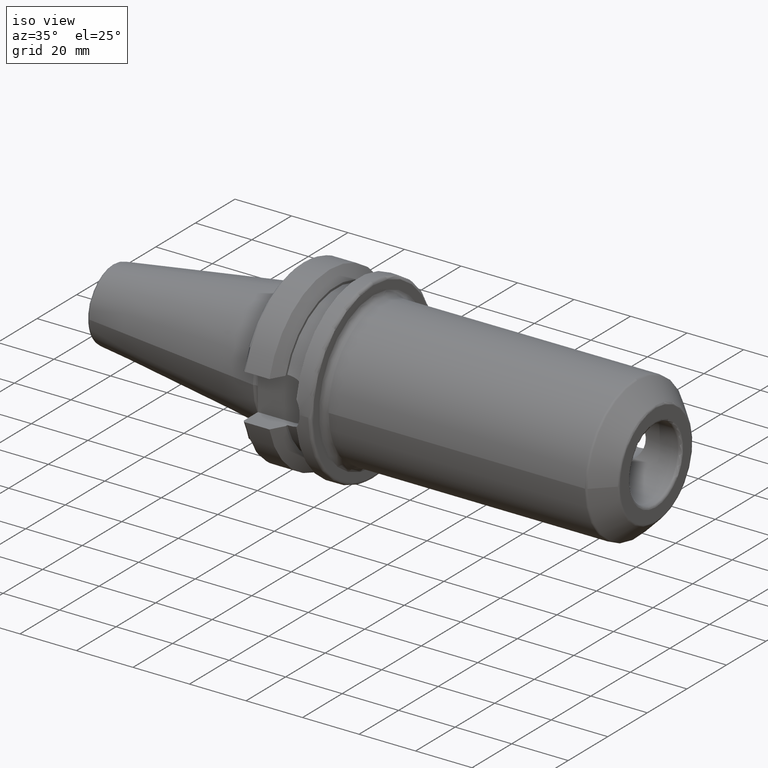
[diagram: clean part render]
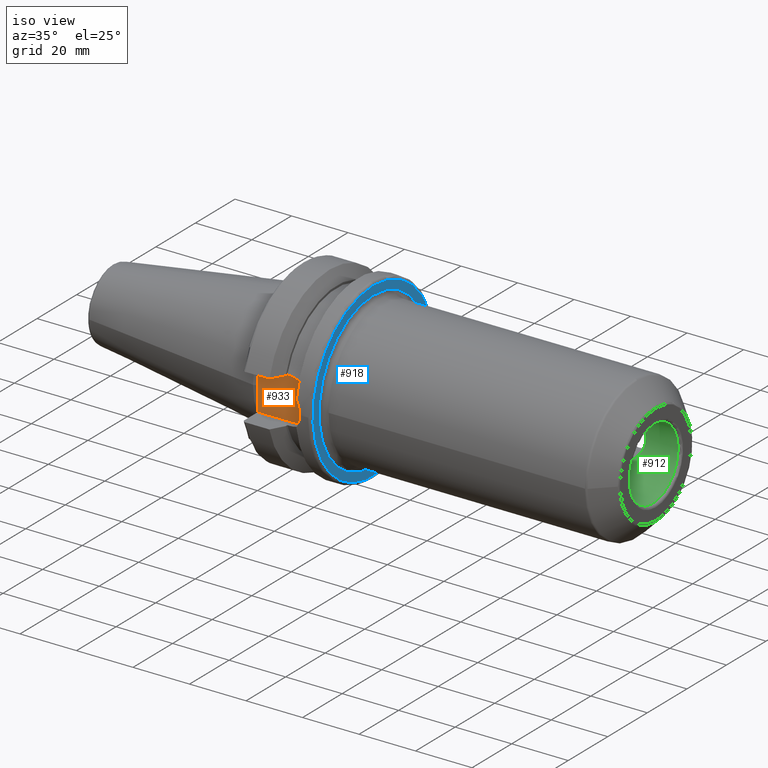
[diagram: same view with three faces highlighted in distinct colors, each labeled with its STEP entity id]
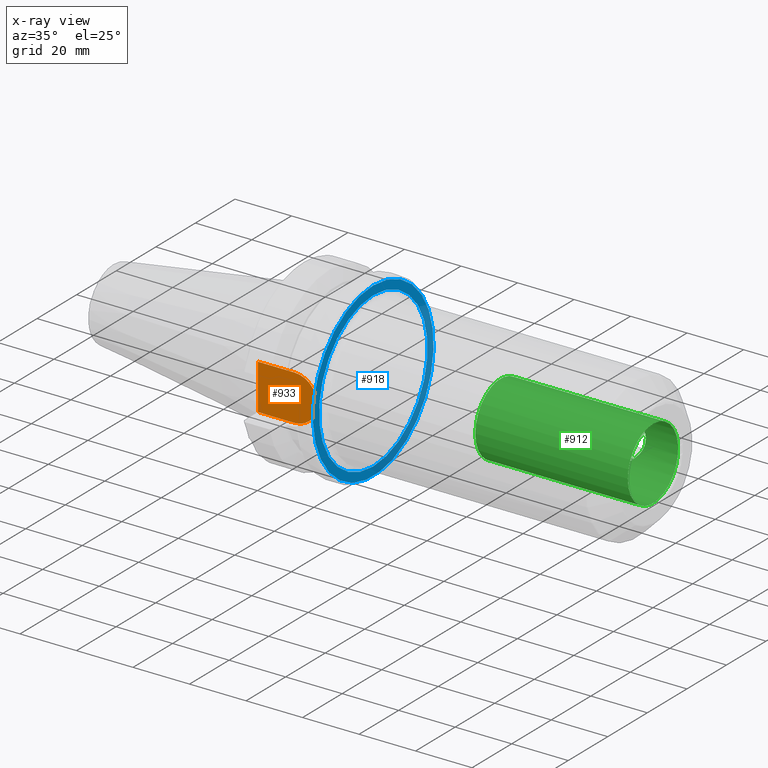
[diagram: x-ray of the same camera — body ghosted, the three highlighted faces saturated]
A machine part, iso view with three faces highlighted in distinct colors.
The next image is the same camera in x-ray (body ghosted, the three faces saturated) — at least one of them is partly hidden behind the body in this view.
Their STEP definitions:

[orange] entity #933 — the highlighted planar face has unit normal (0, 1, 0).
#74=LINE('',#2025,#123);
#76=LINE('',#2030,#125);
#80=LINE('',#2052,#129);
#123=VECTOR('',#1226,10.);
#125=VECTOR('',#1230,10.);
#129=VECTOR('',#1236,10.);
#186=PLANE('',#1038);
#220=FACE_OUTER_BOUND('',#284,.T.);
#284=EDGE_LOOP('',(#737,#738,#739,#740));
#347=CIRCLE('',#1035,8.05);
#425=VERTEX_POINT('',#1996);
#426=VERTEX_POINT('',#1998);
#432=VERTEX_POINT('',#2023);
#434=VERTEX_POINT('',#2029);
#533=EDGE_CURVE('',#425,#426,#347,.T.);
#541=EDGE_CURVE('',#432,#425,#74,.T.);
#543=EDGE_CURVE('',#426,#434,#76,.T.);
#549=EDGE_CURVE('',#434,#432,#80,.T.);
#737=ORIENTED_EDGE('',*,*,#543,.F.);
#738=ORIENTED_EDGE('',*,*,#533,.F.);
#739=ORIENTED_EDGE('',*,*,#541,.F.);
#740=ORIENTED_EDGE('',*,*,#549,.F.);
#933=ADVANCED_FACE('',(#220),#186,.F.);
#1035=AXIS2_PLACEMENT_3D('',#1999,#1217,#1218);
#1038=AXIS2_PLACEMENT_3D('',#2051,#1234,#1235);
#1217=DIRECTION('center_axis',(0.,1.,0.));
#1218=DIRECTION('ref_axis',(0.,0.,1.));
#1226=DIRECTION('',(1.,0.,8.57315076930623E-17));
#1230=DIRECTION('',(-1.,0.,-8.57315076930623E-17));
#1234=DIRECTION('center_axis',(0.,1.,0.));
#1235=DIRECTION('ref_axis',(0.,0.,1.));
#1236=DIRECTION('',(0.,0.,1.));
#1996=CARTESIAN_POINT('',(14.95,-22.6,8.05));
#1998=CARTESIAN_POINT('',(14.95,-22.6,-8.05));
#1999=CARTESIAN_POINT('Origin',(14.95,-22.6,0.));
#2023=CARTESIAN_POINT('',(1.99999999999999,-22.6,8.05));
#2025=CARTESIAN_POINT('',(1.99999999999999,-22.6,8.05));
#2029=CARTESIAN_POINT('',(1.99999999999999,-22.6,-8.05));
#2030=CARTESIAN_POINT('',(14.95,-22.6,-8.05));
#2051=CARTESIAN_POINT('Origin',(12.5,-22.6,0.));
#2052=CARTESIAN_POINT('',(1.99999999999999,-22.6,0.));

[blue] entity #918 — the highlighted planar face has unit normal (1, 0, 0).
#174=FACE_BOUND('',#267,.T.);
#181=PLANE('',#1015);
#205=FACE_OUTER_BOUND('',#266,.T.);
#266=EDGE_LOOP('',(#664));
#267=EDGE_LOOP('',(#665));
#337=CIRCLE('',#1014,27.4);
#338=CIRCLE('',#1016,30.5);
#404=VERTEX_POINT('',#1581);
#405=VERTEX_POINT('',#1585);
#503=EDGE_CURVE('',#404,#404,#337,.T.);
#504=EDGE_CURVE('',#405,#405,#338,.T.);
#664=ORIENTED_EDGE('',*,*,#504,.T.);
#665=ORIENTED_EDGE('',*,*,#503,.F.);
#918=ADVANCED_FACE('',(#205,#174),#181,.T.);
#1014=AXIS2_PLACEMENT_3D('',#1583,#1163,#1164);
#1015=AXIS2_PLACEMENT_3D('',#1584,#1165,#1166);
#1016=AXIS2_PLACEMENT_3D('',#1586,#1167,#1168);
#1163=DIRECTION('center_axis',(1.,0.,0.));
#1164=DIRECTION('ref_axis',(0.,-1.,-1.22464679914735E-16));
#1165=DIRECTION('center_axis',(1.,0.,0.));
#1166=DIRECTION('ref_axis',(0.,0.,-1.));
#1167=DIRECTION('center_axis',(1.,0.,0.));
#1168=DIRECTION('ref_axis',(0.,0.,-1.));
#1581=CARTESIAN_POINT('',(27.,-3.35553222966375E-15,-27.4));
#1583=CARTESIAN_POINT('Origin',(27.,0.,0.));
#1584=CARTESIAN_POINT('Origin',(27.,0.,0.));
#1585=CARTESIAN_POINT('',(27.,-3.73517273739943E-15,30.5));
#1586=CARTESIAN_POINT('Origin',(27.,0.,0.));

[green] entity #912 — the highlighted cylindrical surface (bore or boss wall) has radius 12.7 mm, axis along (1, 0, 0).
#31=B_SPLINE_CURVE_WITH_KNOTS('',3,(#1415,#1416,#1417,#1418,#1419,#1420,
#1421,#1422,#1423,#1424),.UNSPECIFIED.,.F.,.F.,(4,2,2,2,4),(0.,0.342831187342052,
0.685662374684103,1.02424067190905,1.36281896913399),.UNSPECIFIED.);
#32=B_SPLINE_CURVE_WITH_KNOTS('',3,(#1425,#1426,#1427,#1428,#1429,#1430,
#1431,#1432,#1433,#1434,#1435,#1436,#1437,#1438,#1439,#1440,#1441,#1442,
#1443,#1444,#1445,#1446,#1447,#1448,#1449,#1450),.UNSPECIFIED.,.F.,.F.,
(4,2,2,2,2,2,2,2,2,2,2,2,4),(1.36281896913399,1.70139726635893,2.03997556358388,
2.38280675092593,2.72563793826798,3.06846912561003,3.41130031295208,3.74987861017703,
4.08845690740197,4.42703520462691,4.76561350185186,5.10844468919391,5.45127587653596),
 .UNSPECIFIED.);
#33=B_SPLINE_CURVE_WITH_KNOTS('',3,(#1453,#1454,#1455,#1456,#1457,#1458,
#1459,#1460,#1461,#1462),.UNSPECIFIED.,.F.,.F.,(4,2,2,2,4),(0.,0.342831187342052,
0.685662374684103,1.02424067190905,1.36281896913399),.UNSPECIFIED.);
#34=B_SPLINE_CURVE_WITH_KNOTS('',3,(#1463,#1464,#1465,#1466,#1467,#1468,
#1469,#1470,#1471,#1472,#1473,#1474,#1475,#1476,#1477,#1478,#1479,#1480,
#1481,#1482,#1483,#1484,#1485,#1486,#1487,#1488),.UNSPECIFIED.,.F.,.F.,
(4,2,2,2,2,2,2,2,2,2,2,2,4),(1.36281896913399,1.70139726635893,2.03997556358388,
2.38280675092593,2.72563793826798,3.06846912561003,3.41130031295208,3.74987861017703,
4.08845690740197,4.42703520462691,4.76561350185186,5.10844468919391,5.45127587653596),
 .UNSPECIFIED.);
#54=LINE('',#1411,#103);
#103=VECTOR('',#1126,12.7);
#152=CYLINDRICAL_SURFACE('',#996,12.7);
#170=FACE_BOUND('',#257,.T.);
#171=FACE_BOUND('',#258,.T.);
#199=FACE_OUTER_BOUND('',#256,.T.);
#256=EDGE_LOOP('',(#625,#626,#627,#628,#629));
#257=EDGE_LOOP('',(#630,#631));
#258=EDGE_LOOP('',(#632,#633));
#320=CIRCLE('',#990,12.7);
#321=CIRCLE('',#991,12.7);
#325=CIRCLE('',#997,12.7);
#385=VERTEX_POINT('',#1399);
#386=VERTEX_POINT('',#1400);
#389=VERTEX_POINT('',#1410);
#390=VERTEX_POINT('',#1413);
#391=VERTEX_POINT('',#1414);
#392=VERTEX_POINT('',#1451);
#393=VERTEX_POINT('',#1452);
#477=EDGE_CURVE('',#385,#386,#320,.T.);
#478=EDGE_CURVE('',#386,#385,#321,.T.);
#482=EDGE_CURVE('',#386,#389,#54,.T.);
#483=EDGE_CURVE('',#389,#389,#325,.T.);
#484=EDGE_CURVE('',#390,#391,#31,.T.);
#485=EDGE_CURVE('',#391,#390,#32,.T.);
#486=EDGE_CURVE('',#392,#393,#33,.T.);
#487=EDGE_CURVE('',#393,#392,#34,.T.);
#625=ORIENTED_EDGE('',*,*,#477,.F.);
#626=ORIENTED_EDGE('',*,*,#478,.F.);
#627=ORIENTED_EDGE('',*,*,#482,.T.);
#628=ORIENTED_EDGE('',*,*,#483,.F.);
#629=ORIENTED_EDGE('',*,*,#482,.F.);
#630=ORIENTED_EDGE('',*,*,#484,.T.);
#631=ORIENTED_EDGE('',*,*,#485,.T.);
#632=ORIENTED_EDGE('',*,*,#486,.T.);
#633=ORIENTED_EDGE('',*,*,#487,.T.);
#912=ADVANCED_FACE('',(#199,#170,#171),#152,.F.);
#990=AXIS2_PLACEMENT_3D('',#1401,#1112,#1113);
#991=AXIS2_PLACEMENT_3D('',#1402,#1114,#1115);
#996=AXIS2_PLACEMENT_3D('',#1409,#1124,#1125);
#997=AXIS2_PLACEMENT_3D('',#1412,#1127,#1128);
#1112=DIRECTION('center_axis',(-1.,0.,0.));
#1113=DIRECTION('ref_axis',(0.,-1.,1.83697019872103E-16));
#1114=DIRECTION('center_axis',(-1.,0.,0.));
#1115=DIRECTION('ref_axis',(0.,-1.,1.83697019872103E-16));
#1124=DIRECTION('center_axis',(1.,0.,0.));
#1125=DIRECTION('ref_axis',(0.,1.,0.));
#1126=DIRECTION('',(-1.,0.,0.));
#1127=DIRECTION('center_axis',(1.,0.,0.));
#1128=DIRECTION('ref_axis',(0.,0.,-1.));
#1399=CARTESIAN_POINT('',(126.,-1.55530143491714E-15,12.7));
#1400=CARTESIAN_POINT('',(126.,-12.7,-1.55530143491714E-15));
#1401=CARTESIAN_POINT('Origin',(126.,0.,0.));
#1402=CARTESIAN_POINT('Origin',(126.,0.,0.));
#1409=CARTESIAN_POINT('Origin',(99.5,0.,0.));
#1410=CARTESIAN_POINT('',(72.,-12.7,-1.55530143491714E-15));
#1411=CARTESIAN_POINT('',(99.5,-12.7,-1.55530143491714E-15));
#1412=CARTESIAN_POINT('Origin',(72.,0.,0.));
#1413=CARTESIAN_POINT('',(105.9,9.28817258883579,8.6614));
#1414=CARTESIAN_POINT('',(114.5614,12.7,2.4753723005834E-17));
#1415=CARTESIAN_POINT('Ctrl Pts',(105.9,9.28817258883579,8.6614));
#1416=CARTESIAN_POINT('Ctrl Pts',(107.042770624473,9.28817258883579,8.6614));
#1417=CARTESIAN_POINT('Ctrl Pts',(108.213192579857,9.52028980979608,8.42510703939285));
#1418=CARTESIAN_POINT('Ctrl Pts',(110.324818648047,10.2403122930747,7.53354592798));
#1419=CARTESIAN_POINT('Ctrl Pts',(111.271511011252,10.7111190531903,6.87755833788624));
#1420=CARTESIAN_POINT('Ctrl Pts',(112.768216927262,11.5350374541816,5.38085242187607));
#1421=CARTESIAN_POINT('Ctrl Pts',(113.430286935993,11.9523850753063,4.43227008771077));
#1422=CARTESIAN_POINT('Ctrl Pts',(114.327767414902,12.5372065673924,2.30715875855383));
#1423=CARTESIAN_POINT('Ctrl Pts',(114.5614,12.7,1.12859432408315));
#1424=CARTESIAN_POINT('Ctrl Pts',(114.5614,12.7,1.38777878078145E-15));
#1425=CARTESIAN_POINT('Ctrl Pts',(114.5614,12.7,1.11022302462516E-15));
#1426=CARTESIAN_POINT('Ctrl Pts',(114.5614,12.7,-1.12859432408314));
#1427=CARTESIAN_POINT('Ctrl Pts',(114.327767414902,12.5372065673924,-2.30715875855383));
#1428=CARTESIAN_POINT('Ctrl Pts',(113.430286935993,11.9523850753063,-4.43227008771077));
#1429=CARTESIAN_POINT('Ctrl Pts',(112.768216927262,11.5350374541816,-5.38085242187607));
#1430=CARTESIAN_POINT('Ctrl Pts',(111.271511011252,10.7111190531903,-6.87755833788624));
#1431=CARTESIAN_POINT('Ctrl Pts',(110.324818648047,10.2403122930747,-7.53354592798));
#1432=CARTESIAN_POINT('Ctrl Pts',(108.213192579857,9.52028980979607,-8.42510703939285));
#1433=CARTESIAN_POINT('Ctrl Pts',(107.042770624473,9.28817258883579,-8.6614));
#1434=CARTESIAN_POINT('Ctrl Pts',(104.757229375526,9.28817258883579,-8.6614));
#1435=CARTESIAN_POINT('Ctrl Pts',(103.586807420143,9.52028980979608,-8.42510703939285));
#1436=CARTESIAN_POINT('Ctrl Pts',(101.475181351953,10.2403122930747,-7.53354592798));
#1437=CARTESIAN_POINT('Ctrl Pts',(100.528488988748,10.7111190531903,-6.87755833788624));
#1438=CARTESIAN_POINT('Ctrl Pts',(99.0317830727378,11.5350374541816,-5.38085242187608));
#1439=CARTESIAN_POINT('Ctrl Pts',(98.3697130640066,11.9523850753063,-4.43227008771078));
#1440=CARTESIAN_POINT('Ctrl Pts',(97.4722325850977,12.5372065673924,-2.30715875855383));
#1441=CARTESIAN_POINT('Ctrl Pts',(97.2386,12.7,-1.12859432408315));
#1442=CARTESIAN_POINT('Ctrl Pts',(97.2386,12.7,1.12859432408314));
#1443=CARTESIAN_POINT('Ctrl Pts',(97.4722325850977,12.5372065673924,2.30715875855383));
#1444=CARTESIAN_POINT('Ctrl Pts',(98.3697130640066,11.9523850753063,4.43227008771077));
#1445=CARTESIAN_POINT('Ctrl Pts',(99.0317830727378,11.5350374541816,5.38085242187607));
#1446=CARTESIAN_POINT('Ctrl Pts',(100.528488988748,10.7111190531903,6.87755833788624));
#1447=CARTESIAN_POINT('Ctrl Pts',(101.475181351953,10.2403122930747,7.53354592798));
#1448=CARTESIAN_POINT('Ctrl Pts',(103.586807420143,9.52028980979607,8.42510703939285));
#1449=CARTESIAN_POINT('Ctrl Pts',(104.757229375526,9.28817258883579,8.6614));
#1450=CARTESIAN_POINT('Ctrl Pts',(105.9,9.28817258883579,8.6614));
#1451=CARTESIAN_POINT('',(83.,9.28817258883579,8.6614));
#1452=CARTESIAN_POINT('',(91.6614,12.7,-4.46352160332383E-17));
#1453=CARTESIAN_POINT('Ctrl Pts',(83.,9.28817258883579,8.6614));
#1454=CARTESIAN_POINT('Ctrl Pts',(84.1427706244735,9.28817258883579,8.6614));
#1455=CARTESIAN_POINT('Ctrl Pts',(85.3131925798569,9.52028980979608,8.42510703939285));
#1456=CARTESIAN_POINT('Ctrl Pts',(87.4248186480471,10.2403122930747,7.53354592798));
#1457=CARTESIAN_POINT('Ctrl Pts',(88.3715110112521,10.7111190531903,6.87755833788624));
#1458=CARTESIAN_POINT('Ctrl Pts',(89.8682169272623,11.5350374541816,5.38085242187607));
#1459=CARTESIAN_POINT('Ctrl Pts',(90.5302869359934,11.9523850753063,4.43227008771077));
#1460=CARTESIAN_POINT('Ctrl Pts',(91.4277674149023,12.5372065673924,2.30715875855383));
#1461=CARTESIAN_POINT('Ctrl Pts',(91.6614,12.7,1.12859432408314));
#1462=CARTESIAN_POINT('Ctrl Pts',(91.6614,12.7,2.77555756156289E-16));
#1463=CARTESIAN_POINT('Ctrl Pts',(91.6614,12.7,9.71445146547012E-16));
#1464=CARTESIAN_POINT('Ctrl Pts',(91.6614,12.7,-1.12859432408314));
#1465=CARTESIAN_POINT('Ctrl Pts',(91.4277674149023,12.5372065673924,-2.30715875855383));
#1466=CARTESIAN_POINT('Ctrl Pts',(90.5302869359934,11.9523850753063,-4.43227008771077));
#1467=CARTESIAN_POINT('Ctrl Pts',(89.8682169272623,11.5350374541816,-5.38085242187607));
#1468=CARTESIAN_POINT('Ctrl Pts',(88.3715110112521,10.7111190531903,-6.87755833788624));
#1469=CARTESIAN_POINT('Ctrl Pts',(87.4248186480471,10.2403122930747,-7.53354592798));
#1470=CARTESIAN_POINT('Ctrl Pts',(85.3131925798569,9.52028980979607,-8.42510703939285));
#1471=CARTESIAN_POINT('Ctrl Pts',(84.1427706244735,9.28817258883579,-8.6614));
#1472=CARTESIAN_POINT('Ctrl Pts',(81.8572293755265,9.28817258883579,-8.6614));
#1473=CARTESIAN_POINT('Ctrl Pts',(80.6868074201431,9.52028980979608,-8.42510703939285));
#1474=CARTESIAN_POINT('Ctrl Pts',(78.5751813519529,10.2403122930747,-7.53354592798));
#1475=CARTESIAN_POINT('Ctrl Pts',(77.6284889887479,10.7111190531903,-6.87755833788624));
#1476=CARTESIAN_POINT('Ctrl Pts',(76.1317830727378,11.5350374541816,-5.38085242187608));
#1477=CARTESIAN_POINT('Ctrl Pts',(75.4697130640066,11.9523850753063,-4.43227008771077));
#1478=CARTESIAN_POINT('Ctrl Pts',(74.5722325850977,12.5372065673924,-2.30715875855383));
#1479=CARTESIAN_POINT('Ctrl Pts',(74.3386,12.7,-1.12859432408315));
#1480=CARTESIAN_POINT('Ctrl Pts',(74.3386,12.7,1.12859432408314));
#1481=CARTESIAN_POINT('Ctrl Pts',(74.5722325850977,12.5372065673924,2.30715875855382));
#1482=CARTESIAN_POINT('Ctrl Pts',(75.4697130640066,11.9523850753063,4.43227008771076));
#1483=CARTESIAN_POINT('Ctrl Pts',(76.1317830727378,11.5350374541816,5.38085242187607));
#1484=CARTESIAN_POINT('Ctrl Pts',(77.6284889887479,10.7111190531903,6.87755833788624));
#1485=CARTESIAN_POINT('Ctrl Pts',(78.5751813519529,10.2403122930747,7.53354592798));
#1486=CARTESIAN_POINT('Ctrl Pts',(80.6868074201431,9.52028980979608,8.42510703939285));
#1487=CARTESIAN_POINT('Ctrl Pts',(81.8572293755265,9.28817258883579,8.6614));
#1488=CARTESIAN_POINT('Ctrl Pts',(83.,9.28817258883579,8.6614));